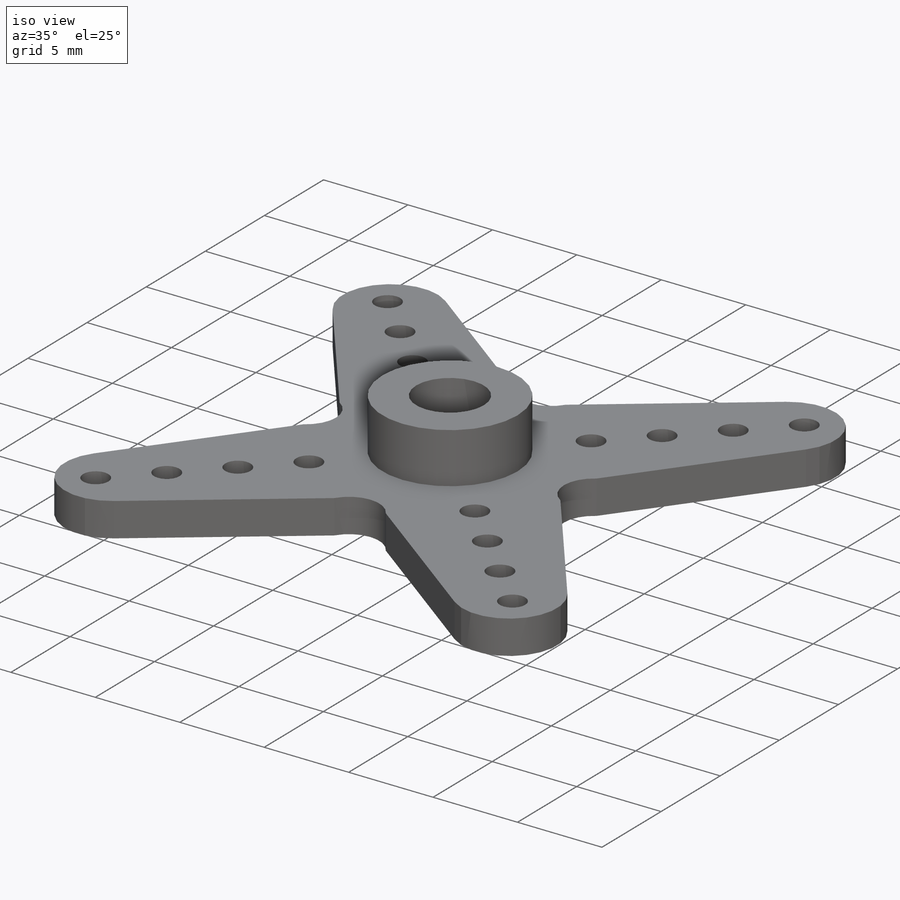
[diagram: iso view]
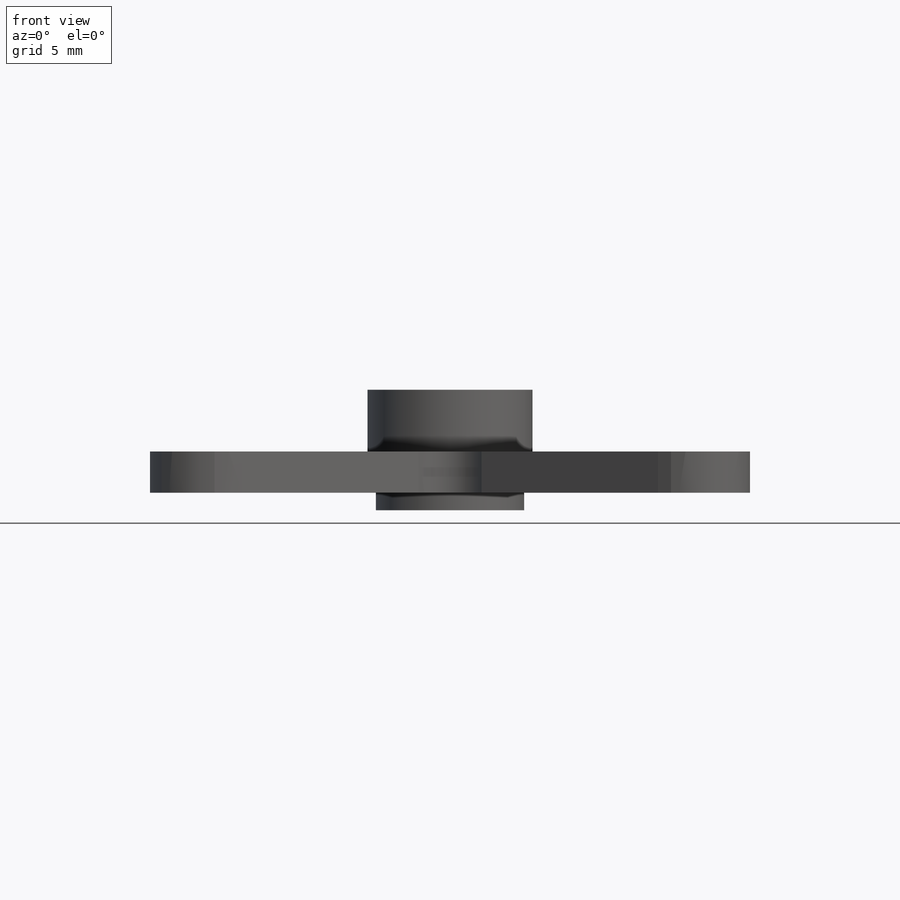
[diagram: front view]
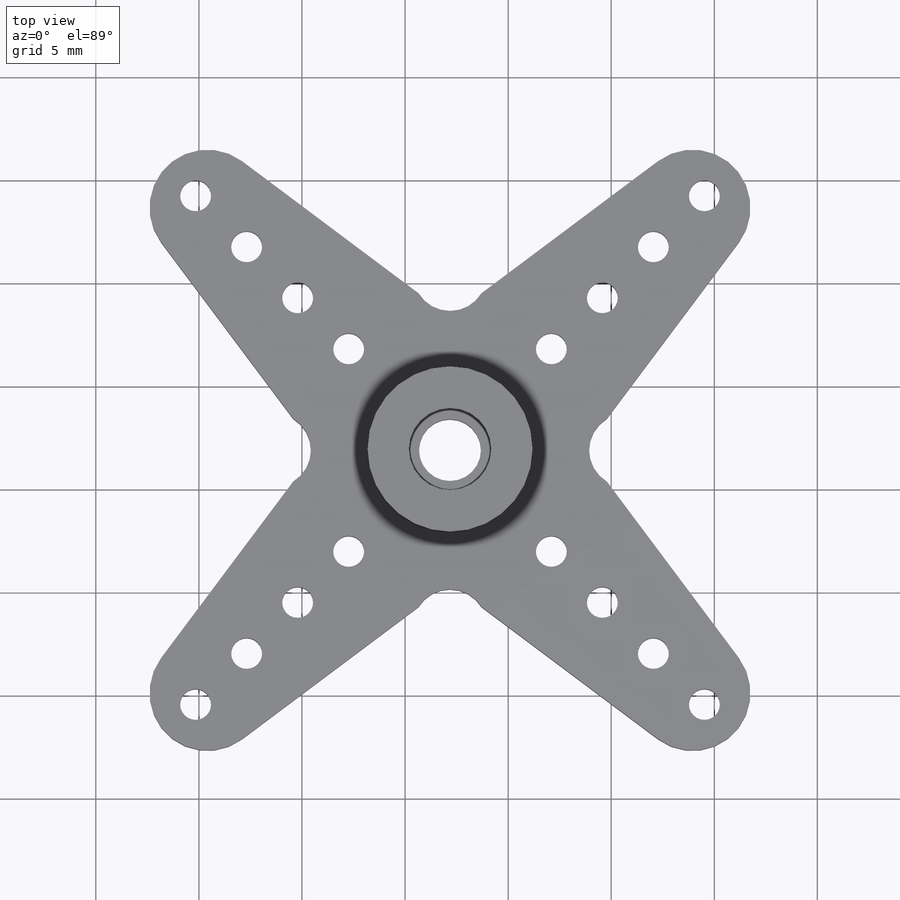
[diagram: top view]
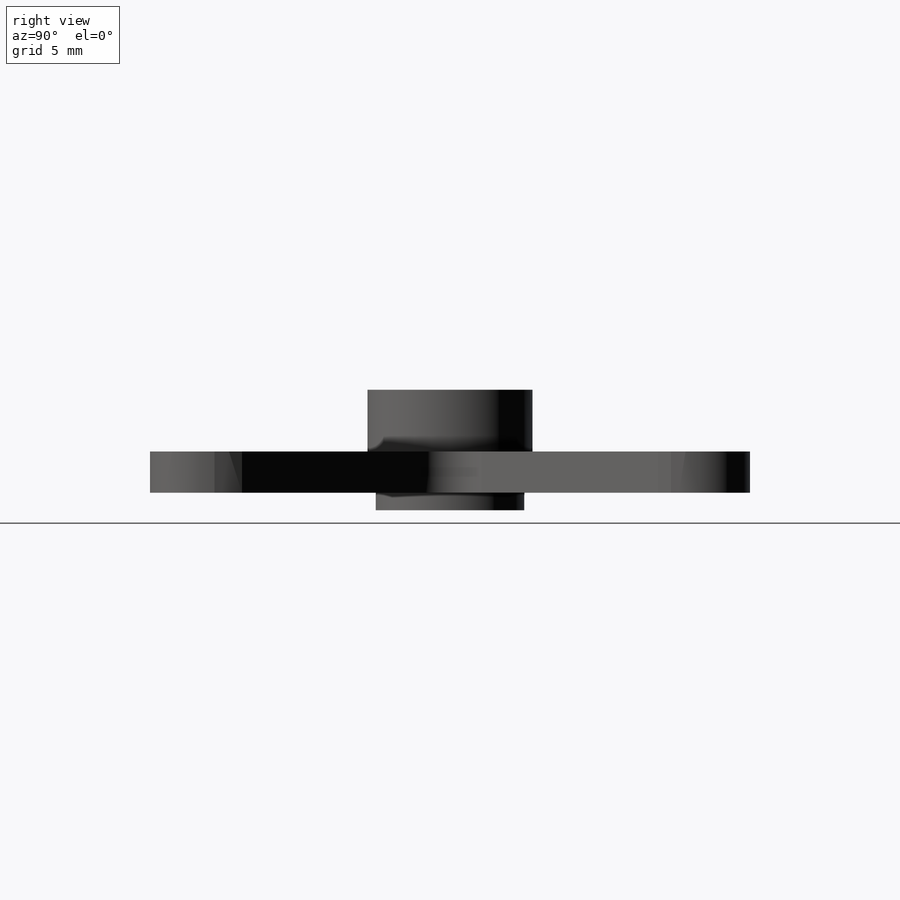
[diagram: right view]
SOLIDWORKS PART (.sldprt)
format: sldprt  version: not decoded by parser v0  size: 295,424 bytes
history: native  units: mm
features: sketch x5, extrude x3, cut_extrude x2, material x1, pattern_linear x1, pattern_circular x1 (+11 scaffold rows collapsed)
feature tree (24):
  scaffold x11  (default folders/planes/origin — collapsed)
  material  "Material <not specified>"
  sketch  "Sketch1"  dims[c1.D2=17.5mm c1.D3=5.0mm c1.D1=5.0mm c2.D2=13.5mm c2.D1=56.0mm c2.D3=1.9mm c2.D4=9.5mm c3.D1=19.45mm c3.D3=~4.626404mm c4.D3=315.0deg c5.D3=4.8mm c5.D4=8.6mm c5.D2=19.45mm]
  extrude  "Boss-Extrude1"  Depth=2mm
  sketch  "Sketch5"  dims[D1=8.0mm]
  extrude  "Boss-Extrude2"  Depth=3mm
  sketch  "Sketch8"  dims[D1=3.0mm]
  cut_extrude  "Cut-Extrude2"  [1 undecoded]
  sketch  "Sketch9"  dims[D1=7.2mm D2=0.6mm]
  extrude  "Boss-Extrude3"  Depth=0.85mm
  sketch  "Sketch10"  dims[D1=1.5mm D2=2.0mm]
  cut_extrude  "Cut-Extrude3"  [1 undecoded]
  pattern_linear  "LPattern1"  Count1=4 Count2=1 Spacing1=3.5mm Spacing2=10mm
  pattern_circular  "CirPattern1"  Count=4 Angle=90deg
decode coverage: 10 of 12 modeling features carry decoded parameters
note: ~ marks probable driven/reference dimensions
note: 2 parameter values undecoded
note: suppression state not decoded; provenance and decode notes live in map.json
